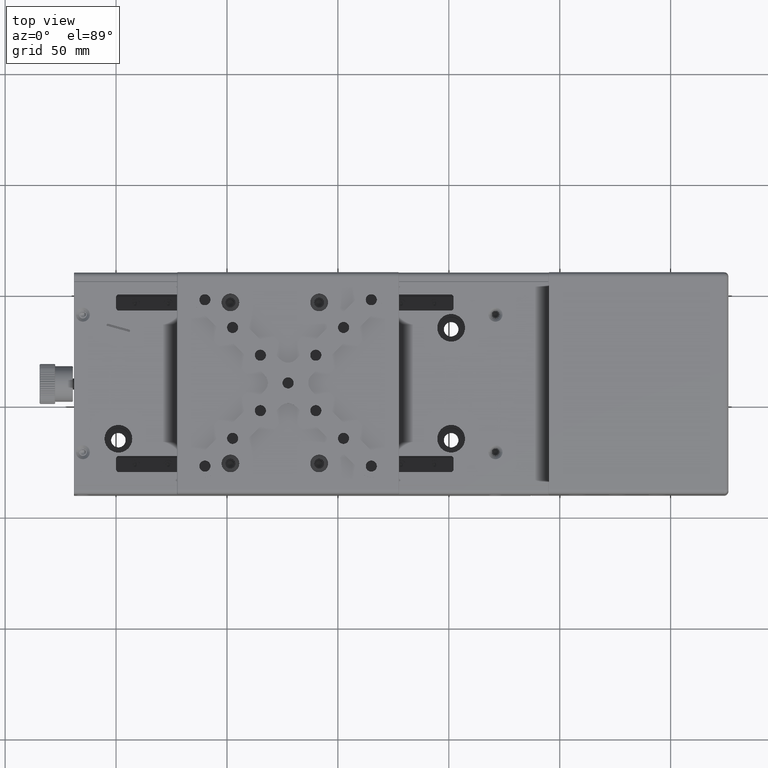
[diagram: clean part render]
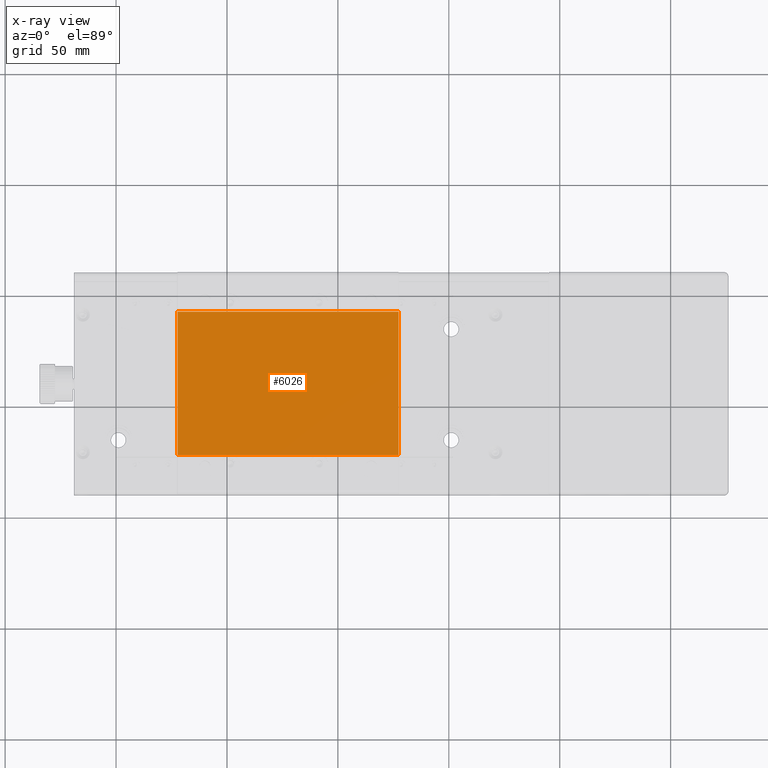
[diagram: x-ray — body ghosted, one internal face saturated and labeled with its STEP entity id]
A machine part, top view, then the same camera in x-ray: the body is ghosted and one INTERNAL B-rep face — a face not visible from any outside direction — is saturated and labeled: STEP entity #6026.
In plain terms, the highlighted planar face has unit normal (0, 0, -1).
Its self-contained STEP definition (entity closure, byte-faithful):
#1928 = CARTESIAN_POINT ( 'NONE',  ( -72.46872086758850173, 9.994248587424539920, 35.50000000000000000 ) ) ;
#5388 = DIRECTION ( 'NONE',  ( 1.000000000000000000, 0.000000000000000000, 0.000000000000000000 ) ) ;
#5880 = ORIENTED_EDGE ( 'NONE', *, *, #31982, .T. ) ;
#6026 = ADVANCED_FACE ( 'NONE', ( #14304 ), #53311, .T. ) ;
#10292 = CARTESIAN_POINT ( 'NONE',  ( -22.46872086758844844, -22.30575141257545013, 35.50000000000000000 ) ) ;
#11012 = LINE ( 'NONE', #10292, #38541 ) ;
#12948 = DIRECTION ( 'NONE',  ( -1.224646799147351975E-16, 1.000000000000000000, 0.000000000000000000 ) ) ;
#14304 = FACE_OUTER_BOUND ( 'NONE', #66116, .T. ) ;
#15076 = CARTESIAN_POINT ( 'NONE',  ( -22.66872086758850102, -22.30575141257545013, 35.50000000000000000 ) ) ;
#16178 = DIRECTION ( 'NONE',  ( 1.387778780781445922E-16, -1.000000000000000000, 0.000000000000000000 ) ) ;
#17220 = VERTEX_POINT ( 'NONE', #40063 ) ;
#17278 = AXIS2_PLACEMENT_3D ( 'NONE', #1928, #24831, #47684 ) ;
#18541 = CARTESIAN_POINT ( 'NONE',  ( -22.66872086758850102, 42.29424858742454774, 35.50000000000000000 ) ) ;
#19687 = CARTESIAN_POINT ( 'NONE',  ( -122.2687208675883852, 42.29424858742454774, 35.50000000000000000 ) ) ;
#24831 = DIRECTION ( 'NONE',  ( 0.000000000000000000, 0.000000000000000000, -1.000000000000000000 ) ) ;
#25779 = CARTESIAN_POINT ( 'NONE',  ( -22.66872086758850102, -22.30575141257545013, 35.50000000000000000 ) ) ;
#26516 = VECTOR ( 'NONE', #16178, 1000.000000000000000 ) ;
#27463 = LINE ( 'NONE', #15076, #26516 ) ;
#28257 = LINE ( 'NONE', #34241, #65192 ) ;
#28481 = VERTEX_POINT ( 'NONE', #18541 ) ;
#30200 = LINE ( 'NONE', #63591, #48470 ) ;
#31982 = EDGE_CURVE ( 'NONE', #17220, #57185, #30200, .T. ) ;
#34241 = CARTESIAN_POINT ( 'NONE',  ( -22.46872086758844844, 42.29424858742454774, 35.50000000000000000 ) ) ;
#38541 = VECTOR ( 'NONE', #5388, 1000.000000000000000 ) ;
#40063 = CARTESIAN_POINT ( 'NONE',  ( -122.2687208675883852, -22.30575141257545013, 35.50000000000000000 ) ) ;
#47684 = DIRECTION ( 'NONE',  ( 0.000000000000000000, -1.000000000000000000, 0.000000000000000000 ) ) ;
#48470 = VECTOR ( 'NONE', #12948, 1000.000000000000000 ) ;
#51116 = DIRECTION ( 'NONE',  ( -1.000000000000000000, 0.000000000000000000, 0.000000000000000000 ) ) ;
#53311 = PLANE ( 'NONE',  #17278 ) ;
#54270 = VERTEX_POINT ( 'NONE', #25779 ) ;
#57185 = VERTEX_POINT ( 'NONE', #19687 ) ;
#57345 = EDGE_CURVE ( 'NONE', #17220, #54270, #11012, .T. ) ;
#63591 = CARTESIAN_POINT ( 'NONE',  ( -122.2687208675883852, 42.29424858742454774, 35.50000000000000000 ) ) ;
#65192 = VECTOR ( 'NONE', #51116, 1000.000000000000000 ) ;
#66116 = EDGE_LOOP ( 'NONE', ( #73357, #5880, #72946, #70249 ) ) ;
#69241 = EDGE_CURVE ( 'NONE', #28481, #54270, #27463, .T. ) ;
#70249 = ORIENTED_EDGE ( 'NONE', *, *, #69241, .T. ) ;
#72946 = ORIENTED_EDGE ( 'NONE', *, *, #73605, .F. ) ;
#73357 = ORIENTED_EDGE ( 'NONE', *, *, #57345, .F. ) ;
#73605 = EDGE_CURVE ( 'NONE', #28481, #57185, #28257, .T. ) ;